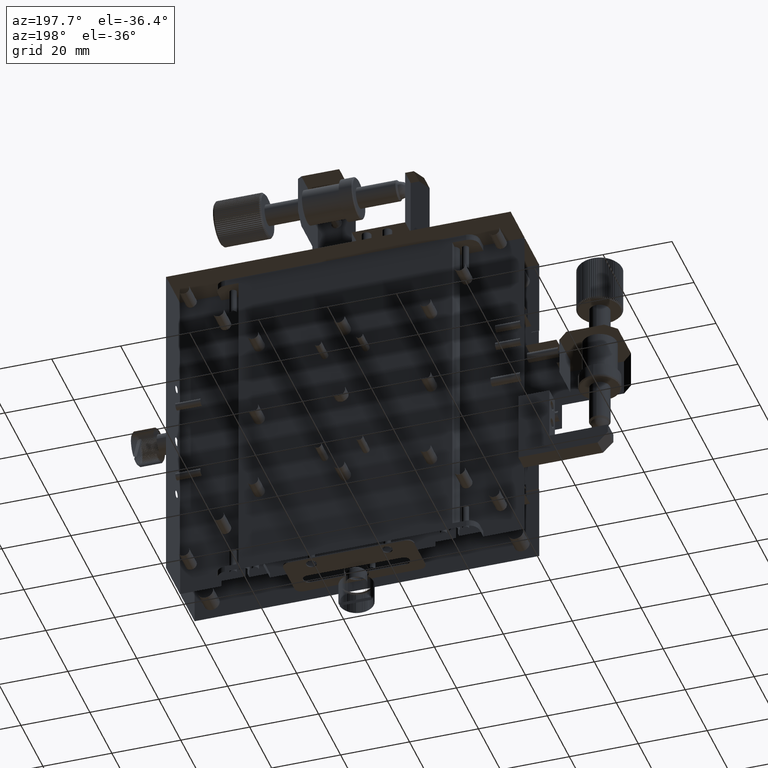
[diagram: clean part render]
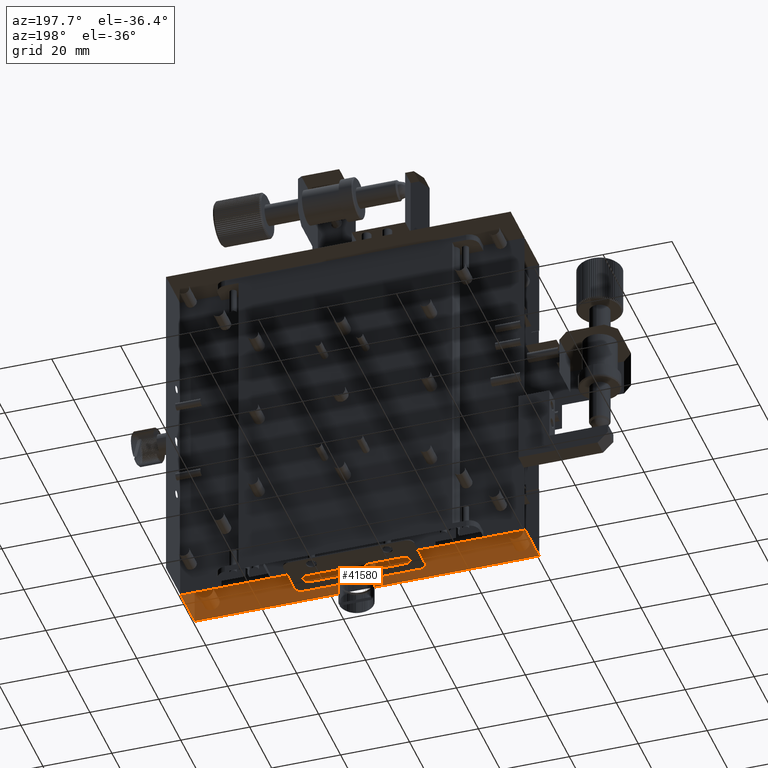
[diagram: same view with one face highlighted and labeled with its STEP entity id]
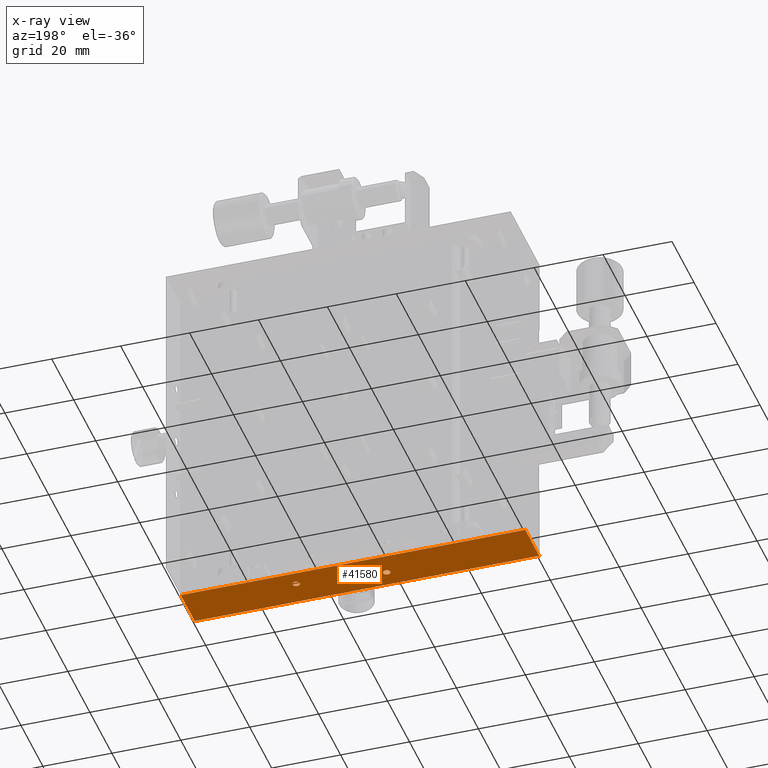
[diagram: x-ray of the same camera — body ghosted, the highlighted face saturated]
A machine part, auxiliary view. The second image highlights one B-rep face of the part: STEP entity #41580.
The next image is the same camera in x-ray: the body ghosted, the highlighted face saturated — about 0% of this face is hidden behind the body in this view.
In plain terms, the highlighted planar face has unit normal (0, 0, 1).
Its self-contained STEP definition (entity closure, byte-faithful):
#273 = CARTESIAN_POINT ( 'NONE',  ( 12.84095269232332548, -0.2130851162013636668, -50.00000000000000000 ) ) ;
#290 = CARTESIAN_POINT ( 'NONE',  ( -3.177293020292842662, 1.632351828029583896, -50.00000000000001421 ) ) ;
#312 = CARTESIAN_POINT ( 'NONE',  ( -10.94473614002813910, -1.628168172441402994, -50.00000000000000711 ) ) ;
#405 = CARTESIAN_POINT ( 'NONE',  ( -5.375742518842010931, -1.137051337634282566, -50.00000000000000711 ) ) ;
#1054 = CARTESIAN_POINT ( 'NONE',  ( 14.54070433707619614, 0.9038000100028286132, -50.00000000000000000 ) ) ;
#1112 = CARTESIAN_POINT ( 'NONE',  ( -5.634324923286773590, 1.961813842482099446, -50.00000000000000000 ) ) ;
#1229 = CARTESIAN_POINT ( 'NONE',  ( -54.38432492328677625, -7.538186157517900554, -50.00000000000000000 ) ) ;
#1319 = CARTESIAN_POINT ( 'NONE',  ( -5.754332240615393168, -3.063118885509927836, -50.00000000000000711 ) ) ;
#1358 = CARTESIAN_POINT ( 'NONE',  ( -5.389946356658849247, 2.723854431807227972, -50.00000000000000000 ) ) ;
#1440 = CARTESIAN_POINT ( 'NONE',  ( 45.61567507671323085, 5.211813842482102999, -50.00000000000000711 ) ) ;
#1546 = CARTESIAN_POINT ( 'NONE',  ( 13.48568239404216840, 1.486746570474134055, -49.99999999999998579 ) ) ;
#1643 = EDGE_CURVE ( 'NONE', #40085, #46004, #19917, .T. ) ;
#1803 = CARTESIAN_POINT ( 'NONE',  ( 12.94077611802963368, 1.236536226871891797, -50.00000000000000000 ) ) ;
#2062 = CARTESIAN_POINT ( 'NONE',  ( -12.20052241587768016, -3.013362403220931185, -50.00000000000000000 ) ) ;
#2296 = CARTESIAN_POINT ( 'NONE',  ( -12.23117127831639905, -3.002854603471997841, -49.99999999999999289 ) ) ;
#2376 = EDGE_CURVE ( 'NONE', #29449, #2847, #41258, .T. ) ;
#2404 = EDGE_CURVE ( 'NONE', #37327, #30047, #8448, .T. ) ;
#2529 = CARTESIAN_POINT ( 'NONE',  ( 14.58032775579045115, 0.1149276024461160783, -49.99999999999999289 ) ) ;
#2537 = CARTESIAN_POINT ( 'NONE',  ( -10.86832079721315480, -2.199240793541805683, -50.00000000000001421 ) ) ;
#2582 = CARTESIAN_POINT ( 'NONE',  ( -12.90032904936040126, -1.877131521494000754, -50.00000000000000711 ) ) ;
#2655 = CARTESIAN_POINT ( 'NONE',  ( 14.64067507671322410, 0.4618138424821085497, -50.00000000000000000 ) ) ;
#2788 = CARTESIAN_POINT ( 'NONE',  ( -10.85932492328677945, -2.038186157517903219, -50.00000000000000000 ) ) ;
#2827 = CARTESIAN_POINT ( 'NONE',  ( -3.764036371302881712, 3.060715821947672222, -49.99999999999997868 ) ) ;
#2847 = VERTEX_POINT ( 'NONE', #10139 ) ;
#2911 = FACE_BOUND ( 'NONE', #44550, .T. ) ;
#2923 = ORIENTED_EDGE ( 'NONE', *, *, #1643, .F. ) ;
#3042 = ORIENTED_EDGE ( 'NONE', *, *, #40728, .T. ) ;
#3046 = EDGE_LOOP ( 'NONE', ( #10851, #20100 ) ) ;
#3153 = CARTESIAN_POINT ( 'NONE',  ( -6.014317605958654944, -1.013253429525874605, -50.00000000000000000 ) ) ;
#3519 = CARTESIAN_POINT ( 'NONE',  ( -5.146365512610534765, 0.9561924091079644361, -50.00000000000000000 ) ) ;
#3574 = B_SPLINE_CURVE_WITH_KNOTS ( 'NONE', 3,
 ( #6618, #20869, #47632, #13500, #13975, #21585, #34068, #41224, #10781, #15172, #7797, #48115, #14471, #22543, #37289, #36803, #3153, #37527, #6852, #7087, #44441, #10543, #44666, #405, #3873, #11255, #3640, #40978, #18866, #26451, #25745, #29896, #21818, #15418 ),
 .UNSPECIFIED., .F., .F.,
 ( 4, 1, 1, 2, 2, 2, 1, 1, 2, 2, 2, 1, 1, 2, 2, 2, 1, 1, 2, 2, 4 ),
 ( 0.000000000000000000, 0.06249999999999768241, 0.09374999999999671096, 0.1093749999999963501, 0.1249999999999959754, 0.2499999999999927836, 0.3124999999999914513, 0.3437499999999907296, 0.3593749999999903966, 0.3749999999999900080, 0.4999999999999930056, 0.5624999999999944489, 0.5937499999999956701, 0.6093749999999957812, 0.6249999999999960032, 0.7499999999999970024, 0.8124999999999976685, 0.8437499999999976685, 0.8593749999999978906, 0.8749999999999981126, 1.000000000000000000 ),
 .UNSPECIFIED. ) ;
#3640 = CARTESIAN_POINT ( 'NONE',  ( -5.043618018907244149, -1.444137239536454453, -50.00000000000000711 ) ) ;
#3751 = CARTESIAN_POINT ( 'NONE',  ( -4.580618418744075271, 0.7227255312773028795, -50.00000000000000000 ) ) ;
#3873 = CARTESIAN_POINT ( 'NONE',  ( -5.259416339918252525, -1.213630722735574485, -49.99999999999999289 ) ) ;
#4018 = EDGE_CURVE ( 'NONE', #24081, #36991, #3574, .T. ) ;
#4025 = CARTESIAN_POINT ( 'NONE',  ( -5.442338755766061631, -2.963215417880974201, -49.99999999999999289 ) ) ;
#4217 = CARTESIAN_POINT ( 'NONE',  ( 12.59067507671322339, 0.3312942391219242944, -49.99999999999997868 ) ) ;
#4458 = CARTESIAN_POINT ( 'NONE',  ( 12.71360039825841604, -0.02737187337322950428, -50.00000000000001421 ) ) ;
#4479 = CARTESIAN_POINT ( 'NONE',  ( -3.207919217095037467, 1.538772645980094778, -50.00000000000001421 ) ) ;
#5295 = CARTESIAN_POINT ( 'NONE',  ( -4.884331381673783667, 3.107663911658688161, -50.00000000000000711 ) ) ;
#5484 = CARTESIAN_POINT ( 'NONE',  ( 13.02162615873101004, 1.302520746861170142, -50.00000000000000000 ) ) ;
#5788 = CARTESIAN_POINT ( 'NONE',  ( -12.55922388197015316, -1.263463773128125744, -50.00000000000000711 ) ) ;
#5996 = CARTESIAN_POINT ( 'NONE',  ( -11.47430693821022629, -2.977774940776541701, -50.00000000000000711 ) ) ;
#6270 = CARTESIAN_POINT ( 'NONE',  ( -4.862873794260048399, 3.116743949905159905, -49.99999999999999289 ) ) ;
#6469 = CARTESIAN_POINT ( 'NONE',  ( -12.24521133469465894, -2.997706439695094094, -50.00000000000001421 ) ) ;
#6513 = CARTESIAN_POINT ( 'NONE',  ( -11.52343851187890245, -1.078665875340697911, -50.00000000000000711 ) ) ;
#6618 = CARTESIAN_POINT ( 'NONE',  ( -6.909324923286773945, -2.038186157517900554, -50.00000000000000000 ) ) ;
#6707 = CARTESIAN_POINT ( 'NONE',  ( 13.55067873537733902, -0.5632197935218759000, -49.99999999999999289 ) ) ;
#6715 = CARTESIAN_POINT ( 'NONE',  ( -12.82391370654543117, -2.448204142594360810, -49.99999999999999289 ) ) ;
#6750 = CARTESIAN_POINT ( 'NONE',  ( -3.284205601139680741, 2.558338459673138665, -50.00000000000000000 ) ) ;
#6839 = DIRECTION ( 'NONE',  ( 1.000000000000000000, 0.000000000000000000, -0.000000000000000000 ) ) ;
#6852 = CARTESIAN_POINT ( 'NONE',  ( -5.723419191286265750, -1.022123168437302887, -50.00000000000000000 ) ) ;
#7087 = CARTESIAN_POINT ( 'NONE',  ( -5.614298864521447996, -1.048375849807643645, -50.00000000000000000 ) ) ;
#7186 = CARTESIAN_POINT ( 'NONE',  ( 14.60544123716825027, 0.1916761056988730283, -50.00000000000000000 ) ) ;
#7441 = CARTESIAN_POINT ( 'NONE',  ( -3.214172872350916421, 1.521716726158736321, -50.00000000000001421 ) ) ;
#7797 = CARTESIAN_POINT ( 'NONE',  ( -6.478373841268635580, -1.197479253138780564, -50.00000000000000000 ) ) ;
#7912 = CARTESIAN_POINT ( 'NONE',  ( -3.285422943821324715, 1.341525290497944667, -50.00000000000000711 ) ) ;
#8172 = CARTESIAN_POINT ( 'NONE',  ( -3.659932795274121631, 0.9365238522541030619, -50.00000000000000000 ) ) ;
#8211 = CARTESIAN_POINT ( 'NONE',  ( -4.919672244209552403, -2.385072397553893886, -50.00000000000002132 ) ) ;
#8363 = EDGE_CURVE ( 'NONE', #2847, #29449, #38936, .T. ) ;
#8444 = CARTESIAN_POINT ( 'NONE',  ( 12.59967095063960763, 0.6228684785065923268, -50.00000000000001421 ) ) ;
#8448 = B_SPLINE_CURVE_WITH_KNOTS ( 'NONE', 3,
 ( #39923, #43124, #2582, #17581, #17832, #29092, #28376, #32556, #39436, #5788, #43377, #9720, #21727, #39681, #14119, #21020, #44091, #28626, #47535, #10197, #25156, #40154, #6513, #10445, #40404, #26591, #37658, #22448, #33275, #312, #40889, #40652, #37435, #22206 ),
 .UNSPECIFIED., .F., .F.,
 ( 4, 1, 1, 2, 2, 2, 1, 1, 2, 2, 2, 1, 1, 2, 2, 2, 1, 1, 2, 2, 4 ),
 ( 0.000000000000000000, 0.06249999999999841793, 0.09374999999999789058, 0.1093749999999973910, 0.1249999999999968914, 0.2499999999999901190, 0.3124999999999867883, 0.3437499999999856226, 0.3593749999999850675, 0.3749999999999845124, 0.4999999999999832356, 0.5624999999999817923, 0.5937499999999810152, 0.6093749999999813483, 0.6249999999999817923, 0.7499999999999897859, 0.8124999999999933387, 0.8437499999999951150, 0.8593749999999958922, 0.8749999999999966693, 1.000000000000000000 ),
 .UNSPECIFIED. ) ;
#8559 = ORIENTED_EDGE ( 'NONE', *, *, #42972, .T. ) ;
#8735 = CARTESIAN_POINT ( 'NONE',  ( -5.554476974222562369, 2.401910958805606011, -49.99999999999999289 ) ) ;
#9185 = CARTESIAN_POINT ( 'NONE',  ( -6.909324923286773945, -2.038186157517900554, -50.00000000000000000 ) ) ;
#9219 = EDGE_LOOP ( 'NONE', ( #15612, #8559 ) ) ;
#9342 = ORIENTED_EDGE ( 'NONE', *, *, #33470, .T. ) ;
#9720 = CARTESIAN_POINT ( 'NONE',  ( -12.37351063914199045, -1.136111479063252716, -49.99999999999999289 ) ) ;
#9923 = CARTESIAN_POINT ( 'NONE',  ( -12.39290732773199721, -2.939320977401293167, -49.99999999999999289 ) ) ;
#9965 = CARTESIAN_POINT ( 'NONE',  ( -3.439520003224010303, 2.784828340520074441, -50.00000000000000000 ) ) ;
#10139 = CARTESIAN_POINT ( 'NONE',  ( -3.134324923286776698, 1.961813842482099446, -50.00000000000000000 ) ) ;
#10159 = CARTESIAN_POINT ( 'NONE',  ( -10.85932492328678123, -2.103267586867210159, -50.00000000000000711 ) ) ;
#10197 = CARTESIAN_POINT ( 'NONE',  ( -11.61429886452119753, -1.048375849807644977, -50.00000000000000711 ) ) ;
#10203 = VECTOR ( 'NONE', #45870, 1000.000000000000000 ) ;
#10393 = CARTESIAN_POINT ( 'NONE',  ( 14.00807730342036983, -0.4852303709441396218, -50.00000000000001421 ) ) ;
#10401 = CARTESIAN_POINT ( 'NONE',  ( -11.75433224061479009, -3.063118885509930500, -50.00000000000000000 ) ) ;
#10445 = CARTESIAN_POINT ( 'NONE',  ( -11.37574251884154819, -1.137051337634633175, -50.00000000000000711 ) ) ;
#10543 = CARTESIAN_POINT ( 'NONE',  ( -5.537478568257180100, -1.073517711563806598, -50.00000000000000000 ) ) ;
#10781 = CARTESIAN_POINT ( 'NONE',  ( -6.708880358068633143, -1.413277574148905646, -50.00000000000002132 ) ) ;
#10851 = ORIENTED_EDGE ( 'NONE', *, *, #8363, .T. ) ;
#11127 = CARTESIAN_POINT ( 'NONE',  ( -5.634324923286773590, 1.802682666222938934, -50.00000000000000000 ) ) ;
#11244 = LINE ( 'NONE', #25734, #33021 ) ;
#11255 = CARTESIAN_POINT ( 'NONE',  ( -5.109602538896722557, -1.363287198834748359, -50.00000000000000000 ) ) ;
#11374 = CARTESIAN_POINT ( 'NONE',  ( -5.539246580975482281, 1.483243653649459093, -50.00000000000000711 ) ) ;
#11382 = B_SPLINE_CURVE_WITH_KNOTS ( 'NONE', 3,
 ( #44294, #21198, #40845, #7186, #25104, #2529, #32749, #47733, #35940, #21435, #17535, #32511, #18020, #44042, #10393, #21679, #40357, #6707, #37857, #30714, #45724, #22399, #15025, #18961, #23118, #273, #30004, #4458, #33460, #37155, #14797, #11826, #4217, #38101 ),
 .UNSPECIFIED., .F., .F.,
 ( 4, 1, 1, 2, 2, 2, 1, 1, 2, 2, 2, 1, 1, 2, 2, 2, 1, 1, 2, 2, 4 ),
 ( 0.000000000000000000, 0.06249999999999718281, 0.09374999999999561462, 0.1093749999999945877, 0.1249999999999935607, 0.2499999999999860112, 0.3124999999999822364, 0.3437499999999803491, 0.3593749999999794054, 0.3749999999999785172, 0.4999999999999755751, 0.5624999999999749090, 0.5937499999999745759, 0.6093749999999752420, 0.6249999999999757971, 0.7499999999999823475, 0.8124999999999856781, 0.8437499999999876765, 0.8593749999999887867, 0.8749999999999898970, 1.000000000000000000 ),
 .UNSPECIFIED. ) ;
#11656 = CARTESIAN_POINT ( 'NONE',  ( -5.627869041235851633, -3.039129527408815701, -50.00000000000000711 ) ) ;
#11826 = CARTESIAN_POINT ( 'NONE',  ( 12.61466407385023025, 0.2055285466882837142, -49.99999999999999289 ) ) ;
#12133 = CARTESIAN_POINT ( 'NONE',  ( 13.12648936085772888, 1.363888520936765714, -50.00000000000000711 ) ) ;
#12402 = CARTESIAN_POINT ( 'NONE',  ( -5.634324923286773590, 1.961813842482099446, -50.00000000000000000 ) ) ;
#12427 = CARTESIAN_POINT ( 'NONE',  ( -5.591356826280708070, 2.291275856934412936, -49.99999999999999289 ) ) ;
#12616 = CARTESIAN_POINT ( 'NONE',  ( 12.65615479453607861, 0.8227002538901032613, -50.00000000000000000 ) ) ;
#12625 = CARTESIAN_POINT ( 'NONE',  ( -6.885335926149772412, -2.294471453312275866, -50.00000000000000711 ) ) ;
#12670 = CARTESIAN_POINT ( 'NONE',  ( -12.90932492328677661, -2.038186157517903219, -50.00000000000000000 ) ) ;
#12923 = CARTESIAN_POINT ( 'NONE',  ( -5.560730629478515041, 2.384855038984032838, -50.00000000000000000 ) ) ;
#13116 = CARTESIAN_POINT ( 'NONE',  ( -6.809354183649883652, -2.480172325038532577, -50.00000000000000000 ) ) ;
#13500 = CARTESIAN_POINT ( 'NONE',  ( -6.874091083741800112, -1.768048420735136794, -49.99999999999999289 ) ) ;
#13608 = CARTESIAN_POINT ( 'NONE',  ( -6.509233506655769830, -2.862741592299756999, -49.99999999999999289 ) ) ;
#13653 = CARTESIAN_POINT ( 'NONE',  ( -3.998685924800191582, 3.151046949282240828, -49.99999999999998579 ) ) ;
#13668 = AXIS2_PLACEMENT_3D ( 'NONE', #26441, #37279, #6839 ) ;
#13975 = CARTESIAN_POINT ( 'NONE',  ( -6.859472788611439498, -1.721916871915835978, -49.99999999999999289 ) ) ;
#14081 = CARTESIAN_POINT ( 'NONE',  ( -12.72503182766602770, -2.632235075499435251, -50.00000000000000711 ) ) ;
#14119 = CARTESIAN_POINT ( 'NONE',  ( -12.27672714999392056, -1.091141944091653437, -50.00000000000000000 ) ) ;
#14326 = CARTESIAN_POINT ( 'NONE',  ( -11.20942596460337626, -2.812908541907762849, -50.00000000000000711 ) ) ;
#14471 = CARTESIAN_POINT ( 'NONE',  ( -6.326311090807408277, -1.113156897154794489, -50.00000000000000000 ) ) ;
#14640 = CARTESIAN_POINT ( 'NONE',  ( -54.38432492328678336, 5.211813842482102999, -50.00000000000000711 ) ) ;
#14797 = CARTESIAN_POINT ( 'NONE',  ( 12.66863931740848770, 0.06939029249280215250, -50.00000000000000000 ) ) ;
#14813 = CARTESIAN_POINT ( 'NONE',  ( -3.884318464900141876, 0.8159637733052677033, -50.00000000000000711 ) ) ;
#15025 = CARTESIAN_POINT ( 'NONE',  ( 13.25478866530520250, -0.4977064396950146574, -50.00000000000000000 ) ) ;
#15172 = CARTESIAN_POINT ( 'NONE',  ( -6.559223881970164705, -1.263463773128083778, -50.00000000000000711 ) ) ;
#15203 = ORIENTED_EDGE ( 'NONE', *, *, #16347, .T. ) ;
#15298 = CARTESIAN_POINT ( 'NONE',  ( -3.845345256260527034, 0.8337112173569792839, -50.00000000000001421 ) ) ;
#15409 = DIRECTION ( 'NONE',  ( -0.000000000000000000, -0.000000000000000000, -1.000000000000000000 ) ) ;
#15418 = CARTESIAN_POINT ( 'NONE',  ( -4.859324923286777675, -2.038186157517900554, -50.00000000000000000 ) ) ;
#15534 = CARTESIAN_POINT ( 'NONE',  ( -3.787800306095780556, 0.8616945203350513394, -50.00000000000000711 ) ) ;
#15612 = ORIENTED_EDGE ( 'NONE', *, *, #39983, .T. ) ;
#15804 = CARTESIAN_POINT ( 'NONE',  ( 12.79111964193178608, 1.086722425851171847, -50.00000000000001421 ) ) ;
#16051 = CARTESIAN_POINT ( 'NONE',  ( 12.64052721138856050, 0.7780831280845241782, -50.00000000000000711 ) ) ;
#16105 = CARTESIAN_POINT ( 'NONE',  ( -5.623354345327778780, 2.158256268638115039, -50.00000000000000000 ) ) ;
#16308 = CARTESIAN_POINT ( 'NONE',  ( -6.154350982051780328, -3.027996465228157241, -50.00000000000000711 ) ) ;
#16347 = EDGE_CURVE ( 'NONE', #30047, #37327, #41723, .T. ) ;
#16545 = CARTESIAN_POINT ( 'NONE',  ( 13.77658080871301571, 1.477876831562704663, -50.00000000000000711 ) ) ;
#16799 = CARTESIAN_POINT ( 'NONE',  ( 13.88570113547801554, 1.451624150192365681, -50.00000000000000000 ) ) ;
#16810 = CARTESIAN_POINT ( 'NONE',  ( -6.786399601741479160, -2.527371873373127187, -50.00000000000001421 ) ) ;
#17050 = CARTESIAN_POINT ( 'NONE',  ( -6.659047307676591920, -2.713085116201286784, -49.99999999999998579 ) ) ;
#17293 = CARTESIAN_POINT ( 'NONE',  ( -12.80935418364994405, -2.480172325038378034, -50.00000000000000000 ) ) ;
#17336 = CARTESIAN_POINT ( 'NONE',  ( -3.229403265598069783, 2.440384031314726254, -50.00000000000000000 ) ) ;
#17424 = FACE_BOUND ( 'NONE', #22894, .T. ) ;
#17535 = CARTESIAN_POINT ( 'NONE',  ( 14.20972399469538949, -0.3788930618968068820, -49.99999999999999289 ) ) ;
#17581 = CARTESIAN_POINT ( 'NONE',  ( -12.87409108374180455, -1.768048420735028881, -50.00000000000000000 ) ) ;
#17791 = CARTESIAN_POINT ( 'NONE',  ( -10.90917705796210946, -2.354455443120038183, -50.00000000000000000 ) ) ;
#17832 = CARTESIAN_POINT ( 'NONE',  ( -12.85947278861144305, -1.721916871915768699, -50.00000000000000711 ) ) ;
#18020 = CARTESIAN_POINT ( 'NONE',  ( 14.05766124423400854, -0.4632154178808975398, -50.00000000000000711 ) ) ;
#18029 = CARTESIAN_POINT ( 'NONE',  ( -11.44233875576612647, -2.963215417881045255, -50.00000000000000711 ) ) ;
#18066 = CARTESIAN_POINT ( 'NONE',  ( -3.359034933058717698, 2.686205970494814466, -50.00000000000000711 ) ) ;
#18136 = CIRCLE ( 'NONE', #19657, 1.024999999999998135 ) ;
#18518 = CARTESIAN_POINT ( 'NONE',  ( -5.329129843349672768, 1.138799344444393125, -50.00000000000001421 ) ) ;
#18866 = CARTESIAN_POINT ( 'NONE',  ( -4.959295662923471681, -1.596199989997467927, -50.00000000000000000 ) ) ;
#18961 = CARTESIAN_POINT ( 'NONE',  ( 13.10709267226910946, -0.4393209774018122515, -50.00000000000000711 ) ) ;
#19266 = CARTESIAN_POINT ( 'NONE',  ( -4.859324923286777675, -2.038186157517900554, -50.00000000000000000 ) ) ;
#19463 = CARTESIAN_POINT ( 'NONE',  ( -4.824422039610078095, 0.7916617915461973132, -50.00000000000000000 ) ) ;
#19657 = AXIS2_PLACEMENT_3D ( 'NONE', #38976, #15409, #34308 ) ;
#19741 = CARTESIAN_POINT ( 'NONE',  ( 13.17368890919242297, 1.386843102845185527, -50.00000000000001421 ) ) ;
#19917 = LINE ( 'NONE', #1229, #45049 ) ;
#20039 = CARTESIAN_POINT ( 'NONE',  ( -5.573529637097344391, 2.347524646841167240, -50.00000000000000711 ) ) ;
#20100 = ORIENTED_EDGE ( 'NONE', *, *, #2376, .T. ) ;
#20229 = CARTESIAN_POINT ( 'NONE',  ( 14.39039746110288576, 1.136712801165600473, -50.00000000000000711 ) ) ;
#20310 = LINE ( 'NONE', #39219, #10203 ) ;
#20467 = CARTESIAN_POINT ( 'NONE',  ( 12.71454025682950650, 0.9703962469264257873, -50.00000000000000711 ) ) ;
#20476 = CARTESIAN_POINT ( 'NONE',  ( -6.392907327731190747, -2.939320977401870039, -49.99999999999999289 ) ) ;
#20565 = EDGE_CURVE ( 'NONE', #46004, #33604, #20310, .T. ) ;
#20680 = ORIENTED_EDGE ( 'NONE', *, *, #2404, .T. ) ;
#20736 = CARTESIAN_POINT ( 'NONE',  ( -11.05976948850495312, -2.663094740886817746, -49.99999999999999289 ) ) ;
#20778 = CARTESIAN_POINT ( 'NONE',  ( -3.622284333962756619, 2.967435275855697885, -49.99999999999999289 ) ) ;
#20869 = CARTESIAN_POINT ( 'NONE',  ( -6.909324923286776610, -1.973104728168677990, -50.00000000000002132 ) ) ;
#21020 = CARTESIAN_POINT ( 'NONE',  ( -12.14078080533792559, -1.037242787626986962, -50.00000000000000000 ) ) ;
#21098 = FACE_BOUND ( 'NONE', #9219, .T. ) ;
#21198 = CARTESIAN_POINT ( 'NONE',  ( 14.64067507671322588, 0.3967324131325248859, -50.00000000000001421 ) ) ;
#21435 = CARTESIAN_POINT ( 'NONE',  ( 14.29057403539679250, -0.3129085419075918750, -50.00000000000000000 ) ) ;
#21585 = CARTESIAN_POINT ( 'NONE',  ( -6.848977602364002770, -1.691299917482077309, -50.00000000000002132 ) ) ;
#21679 = CARTESIAN_POINT ( 'NONE',  ( 13.87213095876436775, -0.5391295274088060419, -50.00000000000000711 ) ) ;
#21688 = CARTESIAN_POINT ( 'NONE',  ( -12.90932492328677661, -2.038186157517903219, -50.00000000000000000 ) ) ;
#21727 = CARTESIAN_POINT ( 'NONE',  ( -12.32631109080740295, -1.113156897154830238, -50.00000000000000711 ) ) ;
#21818 = CARTESIAN_POINT ( 'NONE',  ( -4.859324923286781228, -1.907666554157829486, -50.00000000000002132 ) ) ;
#22177 = CARTESIAN_POINT ( 'NONE',  ( -4.225720698043050838, 0.7118811443835790786, -50.00000000000000000 ) ) ;
#22206 = CARTESIAN_POINT ( 'NONE',  ( -10.85932492328677945, -2.038186157517903219, -50.00000000000000000 ) ) ;
#22299 = DIRECTION ( 'NONE',  ( -1.000000000000000000, -0.000000000000000000, 0.000000000000000000 ) ) ;
#22399 = CARTESIAN_POINT ( 'NONE',  ( 13.26882872168365068, -0.5028546034719846292, -50.00000000000000711 ) ) ;
#22416 = CARTESIAN_POINT ( 'NONE',  ( -4.071650408502188512, 0.7411363149145107077, -50.00000000000000000 ) ) ;
#22448 = CARTESIAN_POINT ( 'NONE',  ( -10.98225024483202716, -1.549000441662798933, -50.00000000000000000 ) ) ;
#22543 = CARTESIAN_POINT ( 'NONE',  ( -6.294342908363319999, -1.098597374259284054, -50.00000000000000711 ) ) ;
#22692 = CARTESIAN_POINT ( 'NONE',  ( -5.059769488505109436, -2.663094740886970957, -50.00000000000000711 ) ) ;
#22886 = CARTESIAN_POINT ( 'NONE',  ( -4.463627035908639407, 0.7117801915313607397, -50.00000000000001421 ) ) ;
#22894 = EDGE_LOOP ( 'NONE', ( #15203, #20680 ) ) ;
#22970 = ORIENTED_EDGE ( 'NONE', *, *, #42641, .T. ) ;
#23043 = CARTESIAN_POINT ( 'NONE',  ( -6.909324923286773945, -2.038186157517900554, -50.00000000000000000 ) ) ;
#23118 = CARTESIAN_POINT ( 'NONE',  ( 12.99076649334440070, -0.3627415922995774200, -50.00000000000000711 ) ) ;
#23138 = CARTESIAN_POINT ( 'NONE',  ( -3.905776052313465918, 0.8068837350590079005, -50.00000000000001421 ) ) ;
#23171 = CARTESIAN_POINT ( 'NONE',  ( 13.96252143174263338, 1.426482288436202062, -50.00000000000000000 ) ) ;
#23181 = CARTESIAN_POINT ( 'NONE',  ( -4.983190103403123850, -2.546768561962519772, -50.00000000000000711 ) ) ;
#23405 = CARTESIAN_POINT ( 'NONE',  ( 14.24058366008254595, 1.286369277263754052, -49.99999999999998579 ) ) ;
#23645 = CARTESIAN_POINT ( 'NONE',  ( 14.56271083601796867, 0.8542373924712772792, -50.00000000000000711 ) ) ;
#24081 = VERTEX_POINT ( 'NONE', #23043 ) ;
#24139 = CARTESIAN_POINT ( 'NONE',  ( 12.62590891625819900, 0.7319515792654205377, -50.00000000000000711 ) ) ;
#24149 = CARTESIAN_POINT ( 'NONE',  ( -6.231171278316259610, -3.002854603471994732, -50.00000000000000000 ) ) ;
#24389 = CARTESIAN_POINT ( 'NONE',  ( -5.949321264622468242, -3.063219793521884338, -50.00000000000000711 ) ) ;
#24429 = CARTESIAN_POINT ( 'NONE',  ( -3.134324923286776698, 2.120945018741370980, -50.00000000000000711 ) ) ;
#24639 = CARTESIAN_POINT ( 'NONE',  ( -11.29027600530489117, -2.878893061897097372, -50.00000000000001421 ) ) ;
#24676 = CARTESIAN_POINT ( 'NONE',  ( -3.944227806963379379, 3.131965893417944624, -50.00000000000000000 ) ) ;
#24921 = CARTESIAN_POINT ( 'NONE',  ( -3.163579797844096486, 2.274317814392152304, -50.00000000000000000 ) ) ;
#25104 = CARTESIAN_POINT ( 'NONE',  ( 14.59082294203789232, 0.1455445568797396338, -49.99999999999999289 ) ) ;
#25156 = CARTESIAN_POINT ( 'NONE',  ( -11.56812743069575866, -1.063009911814874808, -50.00000000000000000 ) ) ;
#25367 = CARTESIAN_POINT ( 'NONE',  ( -10.91967224420955418, -2.385072397553765100, -50.00000000000000000 ) ) ;
#25408 = CARTESIAN_POINT ( 'NONE',  ( -4.542929148530759242, 3.211746540580877163, -49.99999999999999289 ) ) ;
#25734 = CARTESIAN_POINT ( 'NONE',  ( 45.61567507671323085, -7.538186157517900554, -50.00000000000000000 ) ) ;
#25745 = CARTESIAN_POINT ( 'NONE',  ( -4.937289163982039319, -1.645762607528581167, -50.00000000000000000 ) ) ;
#25856 = CARTESIAN_POINT ( 'NONE',  ( -3.145295501245771952, 1.765371416325812515, -50.00000000000000711 ) ) ;
#26096 = CARTESIAN_POINT ( 'NONE',  ( -5.605070048729452026, 1.649309870572159387, -49.99999999999999289 ) ) ;
#26441 = CARTESIAN_POINT ( 'NONE',  ( -4.384324923286775366, -7.538186157517900554, -50.00000000000000000 ) ) ;
#26451 = CARTESIAN_POINT ( 'NONE',  ( -4.944736140028049398, -1.628168172441467831, -49.99999999999999289 ) ) ;
#26591 = CARTESIAN_POINT ( 'NONE',  ( -11.10960253889692240, -1.363287198834608693, -50.00000000000000000 ) ) ;
#26610 = CARTESIAN_POINT ( 'NONE',  ( -4.909177057962113011, -2.354455443120269109, -50.00000000000000000 ) ) ;
#26807 = CARTESIAN_POINT ( 'NONE',  ( -3.134324923286776698, 1.961813842482099446, -50.00000000000000000 ) ) ;
#26850 = CARTESIAN_POINT ( 'NONE',  ( -4.868320797213152140, -2.199240793542285299, -49.99999999999998579 ) ) ;
#27096 = CARTESIAN_POINT ( 'NONE',  ( 13.68067141804875320, 1.486847478486092555, -49.99999999999999289 ) ) ;
#27354 = CARTESIAN_POINT ( 'NONE',  ( -5.395139207431424389, -2.940260835972552833, -50.00000000000000000 ) ) ;
#27589 = CARTESIAN_POINT ( 'NONE',  ( 14.51774975516772237, 0.9509995583374736272, -50.00000000000000000 ) ) ;
#28376 = CARTESIAN_POINT ( 'NONE',  ( -12.84384520546390362, -1.677299746109944145, -49.99999999999999289 ) ) ;
#28588 = CARTESIAN_POINT ( 'NONE',  ( -6.831360682591513189, -2.430609707507137784, -50.00000000000000000 ) ) ;
#28590 = CARTESIAN_POINT ( 'NONE',  ( -12.15435098205217379, -3.027996465228160350, -50.00000000000000000 ) ) ;
#28626 = CARTESIAN_POINT ( 'NONE',  ( -11.81932858195064284, -1.013152521513917437, -49.99999999999999289 ) ) ;
#28828 = CARTESIAN_POINT ( 'NONE',  ( -10.98319010340273216, -2.546768561962128086, -50.00000000000000711 ) ) ;
#29053 = CARTESIAN_POINT ( 'NONE',  ( -12.88533592614977330, -2.294471453312278530, -50.00000000000000000 ) ) ;
#29092 = CARTESIAN_POINT ( 'NONE',  ( -12.84897760236400543, -1.691299917482040893, -50.00000000000000711 ) ) ;
#29175 = FACE_OUTER_BOUND ( 'NONE', #41810, .T. ) ;
#29449 = VERTEX_POINT ( 'NONE', #12402 ) ;
#29553 = CARTESIAN_POINT ( 'NONE',  ( -4.807326227637265248, 0.7853923624072015608, -50.00000000000000000 ) ) ;
#29764 = CARTESIAN_POINT ( 'NONE',  ( 45.61567507671323085, -7.538186157517900554, -50.00000000000000000 ) ) ;
#29782 = CARTESIAN_POINT ( 'NONE',  ( -5.512427548412037304, 1.422834175456046957, -50.00000000000001421 ) ) ;
#29896 = CARTESIAN_POINT ( 'NONE',  ( -4.883313920423780985, -1.781900861724189600, -50.00000000000000711 ) ) ;
#30004 = CARTESIAN_POINT ( 'NONE',  ( 12.77496817233395987, -0.1322350754998982136, -50.00000000000000711 ) ) ;
#30021 = CARTESIAN_POINT ( 'NONE',  ( -3.378703489913108982, 1.199773253158009645, -50.00000000000000000 ) ) ;
#30047 = VERTEX_POINT ( 'NONE', #31685 ) ;
#30309 = CARTESIAN_POINT ( 'NONE',  ( -5.474306938210187212, -2.977774940776499513, -50.00000000000000000 ) ) ;
#30714 = CARTESIAN_POINT ( 'NONE',  ( 13.34564901794796654, -0.5279964652281475823, -50.00000000000000711 ) ) ;
#31332 = CARTESIAN_POINT ( 'NONE',  ( -5.207339421325512419, 2.906618762544309398, -50.00000000000000000 ) ) ;
#31528 = CARTESIAN_POINT ( 'NONE',  ( 14.64067507671322410, 0.5923334458433950900, -50.00000000000000000 ) ) ;
#31537 = CARTESIAN_POINT ( 'NONE',  ( -6.200522415877422588, -3.013362403220927188, -50.00000000000000000 ) ) ;
#31580 = CARTESIAN_POINT ( 'NONE',  ( -5.108717051300822654, 2.987103832709186779, -50.00000000000000000 ) ) ;
#31585 = VERTEX_POINT ( 'NONE', #40416 ) ;
#31685 = CARTESIAN_POINT ( 'NONE',  ( -10.85932492328677945, -2.038186157517903219, -50.00000000000000000 ) ) ;
#31775 = CARTESIAN_POINT ( 'NONE',  ( 13.35921919466251850, 1.462757212373023252, -50.00000000000000000 ) ) ;
#32028 = CARTESIAN_POINT ( 'NONE',  ( -6.823913706545392976, -2.448204142594444743, -50.00000000000000000 ) ) ;
#32069 = CARTESIAN_POINT ( 'NONE',  ( -3.256222298161624895, 2.500793509508377976, -50.00000000000000000 ) ) ;
#32271 = CARTESIAN_POINT ( 'NONE',  ( -12.83136068259151408, -2.430609707507142225, -50.00000000000000000 ) ) ;
#32309 = CARTESIAN_POINT ( 'NONE',  ( -4.054974606858327668, 3.168889912348708204, -49.99999999999998579 ) ) ;
#32403 = FACE_BOUND ( 'NONE', #3046, .T. ) ;
#32511 = CARTESIAN_POINT ( 'NONE',  ( 14.10486079256868663, -0.4402608359724380915, -50.00000000000000711 ) ) ;
#32518 = CARTESIAN_POINT ( 'NONE',  ( -12.78639960174157331, -2.527371873372885158, -50.00000000000000000 ) ) ;
#32556 = CARTESIAN_POINT ( 'NONE',  ( -12.78545974317067113, -1.529603753073299321, -50.00000000000001421 ) ) ;
#32749 = CARTESIAN_POINT ( 'NONE',  ( 14.57519535889038131, 0.1009274310741528069, -50.00000000000000000 ) ) ;
#33021 = VECTOR ( 'NONE', #37519, 1000.000000000000000 ) ;
#33026 = CARTESIAN_POINT ( 'NONE',  ( -4.188031427829247200, 3.200902153686670637, -50.00000000000000711 ) ) ;
#33275 = CARTESIAN_POINT ( 'NONE',  ( -10.95929566292363866, -1.596199989997350244, -49.99999999999999289 ) ) ;
#33424 = EDGE_CURVE ( 'NONE', #43543, #40085, #11244, .T. ) ;
#33460 = CARTESIAN_POINT ( 'NONE',  ( 12.69064581635004707, 0.01982767496140502156, -49.99999999999999289 ) ) ;
#33470 = EDGE_CURVE ( 'NONE', #47178, #47178, #18136, .T. ) ;
#33475 = CARTESIAN_POINT ( 'NONE',  ( -5.409614913515058632, 1.237421714469854717, -50.00000000000000000 ) ) ;
#33604 = VERTEX_POINT ( 'NONE', #14640 ) ;
#33936 = CARTESIAN_POINT ( 'NONE',  ( -54.38432492328678336, -7.538186157517900554, -50.00000000000000711 ) ) ;
#34068 = CARTESIAN_POINT ( 'NONE',  ( -6.843845205463878756, -1.677299746109903955, -49.99999999999999289 ) ) ;
#34193 = CARTESIAN_POINT ( 'NONE',  ( -3.195120209476209006, 1.576103038122901756, -50.00000000000001421 ) ) ;
#34238 = CARTESIAN_POINT ( 'NONE',  ( -4.924804641109619574, -2.399072568925856075, -50.00000000000000000 ) ) ;
#34308 = DIRECTION ( 'NONE',  ( -1.000000000000000000, 0.000000000000000000, 0.000000000000000000 ) ) ;
#34467 = CARTESIAN_POINT ( 'NONE',  ( 14.61668607957622434, 0.7180991382770359754, -50.00000000000000711 ) ) ;
#34708 = CARTESIAN_POINT ( 'NONE',  ( 13.93187256930373685, 1.436990088185135406, -49.99999999999999289 ) ) ;
#34955 = CARTESIAN_POINT ( 'NONE',  ( 12.59067507671322872, 0.4618138424821085497, -50.00000000000000000 ) ) ;
#35011 = CARTESIAN_POINT ( 'NONE',  ( -5.483226902752812215, 2.582102394465110695, -49.99999999999999289 ) ) ;
#35201 = CARTESIAN_POINT ( 'NONE',  ( 13.22327285000603503, 1.408858055908358109, -50.00000000000000711 ) ) ;
#35421 = EDGE_LOOP ( 'NONE', ( #9342 ) ) ;
#35459 = CARTESIAN_POINT ( 'NONE',  ( -6.909324923286773945, -2.168705760878636646, -50.00000000000000711 ) ) ;
#35715 = CARTESIAN_POINT ( 'NONE',  ( -12.04523065528738357, -3.054249146598503106, -50.00000000000000711 ) ) ;
#35752 = CARTESIAN_POINT ( 'NONE',  ( -4.696999438071655320, 3.182491370049949975, -50.00000000000000000 ) ) ;
#35940 = CARTESIAN_POINT ( 'NONE',  ( 14.44023051149473424, -0.1630947408871209758, -50.00000000000000000 ) ) ;
#35950 = CARTESIAN_POINT ( 'NONE',  ( -11.62786904123606746, -3.039129527408819698, -49.99999999999999289 ) ) ;
#35995 = CARTESIAN_POINT ( 'NONE',  ( -3.961323618936222868, 3.138235322556933937, -50.00000000000000000 ) ) ;
#36186 = CARTESIAN_POINT ( 'NONE',  ( -12.90932492328677128, -2.168705760878636202, -49.99999999999998579 ) ) ;
#36551 = FACE_BOUND ( 'NONE', #35421, .T. ) ;
#36676 = CARTESIAN_POINT ( 'NONE',  ( -12.65904730767666919, -2.713085116201104263, -49.99999999999999289 ) ) ;
#36714 = CARTESIAN_POINT ( 'NONE',  ( -4.305022810664785204, 3.211847493432707257, -50.00000000000000000 ) ) ;
#36801 = CARTESIAN_POINT ( 'NONE',  ( -4.384324923286775366, 5.211813842482102110, -50.00000000000000000 ) ) ;
#36803 = CARTESIAN_POINT ( 'NONE',  ( -6.140780805337704429, -1.037242787626986074, -50.00000000000000711 ) ) ;
#36991 = VERTEX_POINT ( 'NONE', #40473 ) ;
#37128 = VERTEX_POINT ( 'NONE', #2655 ) ;
#37155 = CARTESIAN_POINT ( 'NONE',  ( 12.67608629345457238, 0.05179585740552484358, -50.00000000000000000 ) ) ;
#37279 = DIRECTION ( 'NONE',  ( 0.000000000000000000, 0.000000000000000000, 1.000000000000000000 ) ) ;
#37289 = CARTESIAN_POINT ( 'NONE',  ( -6.276727149993943655, -1.091141944091651661, -50.00000000000000000 ) ) ;
#37327 = VERTEX_POINT ( 'NONE', #12670 ) ;
#37405 = CARTESIAN_POINT ( 'NONE',  ( -4.713675239715051646, 0.7547377726153190469, -49.99999999999999289 ) ) ;
#37435 = CARTESIAN_POINT ( 'NONE',  ( -10.85932492328678123, -1.907666554157166905, -50.00000000000000000 ) ) ;
#37440 = ORIENTED_EDGE ( 'NONE', *, *, #20565, .F. ) ;
#37519 = DIRECTION ( 'NONE',  ( -0.000000000000000000, -1.000000000000000000, 0.000000000000000000 ) ) ;
#37527 = CARTESIAN_POINT ( 'NONE',  ( -5.819328581950837354, -1.013152521513916549, -50.00000000000000000 ) ) ;
#37658 = CARTESIAN_POINT ( 'NONE',  ( -11.04361801890759409, -1.444137239536207318, -50.00000000000001421 ) ) ;
#37680 = CARTESIAN_POINT ( 'NONE',  ( -5.209425964603293657, -2.812908541907681137, -50.00000000000001421 ) ) ;
#37857 = CARTESIAN_POINT ( 'NONE',  ( 13.45476934471280472, -0.5542491465984891175, -50.00000000000000000 ) ) ;
#37878 = CARTESIAN_POINT ( 'NONE',  ( -4.769963921773249460, 0.7725807356818462646, -50.00000000000000711 ) ) ;
#38101 = CARTESIAN_POINT ( 'NONE',  ( 12.59067507671322872, 0.4618138424821085497, -50.00000000000000000 ) ) ;
#38405 = CARTESIAN_POINT ( 'NONE',  ( -5.290276005304750839, -2.878893061896954819, -50.00000000000000000 ) ) ;
#38883 = CARTESIAN_POINT ( 'NONE',  ( 14.45638198109206485, 1.055862760464150174, -50.00000000000001421 ) ) ;
#38936 = B_SPLINE_CURVE_WITH_KNOTS ( 'NONE', 3,
 ( #26807, #41107, #25856, #290, #34193, #4479, #7441, #7912, #30021, #41808, #8172, #15534, #15298, #14813, #23138, #22416, #22177, #22886, #3751, #37405, #37878, #29553, #19463, #45031, #3519, #18518, #33475, #48465, #29782, #44784, #11374, #26096, #11127, #41340 ),
 .UNSPECIFIED., .F., .F.,
 ( 4, 1, 1, 2, 2, 2, 1, 1, 2, 2, 2, 1, 1, 2, 2, 2, 1, 1, 2, 2, 4 ),
 ( 0.000000000000000000, 0.06249999999999984734, 0.09374999999999979183, 0.1093749999999998335, 0.1249999999999998612, 0.2499999999999999445, 0.3124999999999999445, 0.3437499999999998335, 0.3593749999999996114, 0.3749999999999993894, 0.4999999999999983902, 0.5624999999999978906, 0.5937499999999975575, 0.6093749999999977796, 0.6249999999999978906, 0.7499999999999988898, 0.8124999999999996669, 0.8437500000000000000, 0.8593750000000001110, 0.8750000000000002220, 1.000000000000000000 ),
 .UNSPECIFIED. ) ;
#38941 = CARTESIAN_POINT ( 'NONE',  ( -4.980849540478816451, 3.061933164628466209, -49.99999999999999289 ) ) ;
#38976 = CARTESIAN_POINT ( 'NONE',  ( -8.384324923286778031, 0.4618138424820998900, -50.00000000000000000 ) ) ;
#39136 = CARTESIAN_POINT ( 'NONE',  ( 14.64067507671322410, 0.4618138424821085497, -50.00000000000000000 ) ) ;
#39219 = CARTESIAN_POINT ( 'NONE',  ( -54.38432492328677625, 4.961813842482100334, -50.00000000000000000 ) ) ;
#39251 = B_SPLINE_CURVE_WITH_KNOTS ( 'NONE', 3,
 ( #34955, #46268, #8444, #24139, #16051, #46520, #12616, #20467, #15804, #1803, #5484, #12133, #19741, #42835, #35201, #31775, #1546, #27096, #16545, #16799, #34708, #23171, #42337, #42099, #23405, #20229, #38883, #27589, #1054, #42589, #23645, #34467, #31528, #39136 ),
 .UNSPECIFIED., .F., .F.,
 ( 4, 1, 1, 2, 2, 2, 1, 1, 2, 2, 2, 1, 1, 2, 2, 2, 1, 1, 2, 2, 4 ),
 ( 0.000000000000000000, 0.06250000000000488498, 0.09375000000000716094, 0.1093750000000080769, 0.1250000000000089928, 0.2500000000000157097, 0.3125000000000190958, 0.3437500000000207612, 0.3593750000000215383, 0.3750000000000223155, 0.5000000000000244249, 0.5625000000000246470, 0.5937500000000238698, 0.6093750000000235367, 0.6250000000000232037, 0.7500000000000145439, 0.8125000000000102141, 0.8437500000000076605, 0.8593750000000067724, 0.8750000000000057732, 1.000000000000000000 ),
 .UNSPECIFIED. ) ;
#39393 = CARTESIAN_POINT ( 'NONE',  ( -6.725031827665898909, -2.632235075499760324, -50.00000000000001421 ) ) ;
#39436 = CARTESIAN_POINT ( 'NONE',  ( -12.70888035806866512, -1.413277574148825710, -50.00000000000000711 ) ) ;
#39644 = CARTESIAN_POINT ( 'NONE',  ( -11.39513920743152831, -2.940260835972658082, -49.99999999999999289 ) ) ;
#39681 = CARTESIAN_POINT ( 'NONE',  ( -12.29434290836332089, -1.098597374259304038, -50.00000000000000000 ) ) ;
#39885 = CARTESIAN_POINT ( 'NONE',  ( -10.89455876283175328, -2.308323894300777113, -50.00000000000001421 ) ) ;
#39923 = CARTESIAN_POINT ( 'NONE',  ( -12.90932492328677661, -2.038186157517903219, -50.00000000000000000 ) ) ;
#39983 = EDGE_CURVE ( 'NONE', #37128, #31585, #11382, .T. ) ;
#40085 = VERTEX_POINT ( 'NONE', #29764 ) ;
#40154 = CARTESIAN_POINT ( 'NONE',  ( -11.53747856825709128, -1.073517711563807930, -50.00000000000000711 ) ) ;
#40357 = CARTESIAN_POINT ( 'NONE',  ( 13.74566775938500029, -0.5631188855099173995, -50.00000000000001421 ) ) ;
#40365 = CARTESIAN_POINT ( 'NONE',  ( -12.50923350665562417, -2.862741592300133586, -49.99999999999999289 ) ) ;
#40404 = CARTESIAN_POINT ( 'NONE',  ( -11.25941633991785729, -1.213630722735859813, -50.00000000000000000 ) ) ;
#40416 = CARTESIAN_POINT ( 'NONE',  ( 12.59067507671322872, 0.4618138424821085497, -50.00000000000000000 ) ) ;
#40473 = CARTESIAN_POINT ( 'NONE',  ( -4.859324923286777675, -2.038186157517900554, -50.00000000000000000 ) ) ;
#40652 = CARTESIAN_POINT ( 'NONE',  ( -10.88331392042377921, -1.781900861723526797, -50.00000000000000000 ) ) ;
#40728 = EDGE_CURVE ( 'NONE', #36991, #24081, #41775, .T. ) ;
#40845 = CARTESIAN_POINT ( 'NONE',  ( 14.63167920278685052, 0.3007592064577216950, -50.00000000000000711 ) ) ;
#40889 = CARTESIAN_POINT ( 'NONE',  ( -10.93728916398204021, -1.645762607528665988, -50.00000000000000711 ) ) ;
#40978 = CARTESIAN_POINT ( 'NONE',  ( -4.982250244831766040, -1.549000441662982341, -49.99999999999998579 ) ) ;
#41107 = CARTESIAN_POINT ( 'NONE',  ( -3.134324923286776698, 1.882426626603674658, -50.00000000000000000 ) ) ;
#41212 = PLANE ( 'NONE',  #13668 ) ;
#41224 = CARTESIAN_POINT ( 'NONE',  ( -6.785459743170865643, -1.529603753073606409, -50.00000000000002132 ) ) ;
#41258 = B_SPLINE_CURVE_WITH_KNOTS ( 'NONE', 3,
 ( #1112, #46572, #16105, #12427, #20039, #12923, #8735, #35011, #1358, #31332, #31580, #38941, #46319, #5295, #6270, #35752, #25408, #36714, #33026, #32309, #13653, #35995, #24676, #2827, #20778, #9965, #18066, #6750, #32069, #47779, #17336, #24921, #24429, #43859 ),
 .UNSPECIFIED., .F., .F.,
 ( 4, 1, 1, 2, 2, 2, 1, 1, 2, 2, 2, 1, 1, 2, 2, 2, 1, 1, 2, 2, 4 ),
 ( 0.000000000000000000, 0.06250000000000015266, 0.09375000000000030531, 0.1093750000000004580, 0.1250000000000006384, 0.2500000000000019984, 0.3125000000000024425, 0.3437500000000025535, 0.3593750000000025535, 0.3750000000000025535, 0.5000000000000022204, 0.5625000000000019984, 0.5937500000000019984, 0.6093750000000019984, 0.6250000000000021094, 0.7500000000000025535, 0.8125000000000026645, 0.8437500000000026645, 0.8593750000000024425, 0.8750000000000022204, 1.000000000000000000 ),
 .UNSPECIFIED. ) ;
#41340 = CARTESIAN_POINT ( 'NONE',  ( -5.634324923286773590, 1.961813842482099446, -50.00000000000000000 ) ) ;
#41580 = ADVANCED_FACE ( 'NONE', ( #36551, #2911, #21098, #17424, #32403, #29175 ), #41212, .T. ) ;
#41607 = CARTESIAN_POINT ( 'NONE',  ( -4.859324923286776787, -2.103267586867483274, -50.00000000000000000 ) ) ;
#41723 = B_SPLINE_CURVE_WITH_KNOTS ( 'NONE', 3,
 ( #2788, #10159, #2537, #39885, #17791, #25367, #43334, #28828, #20736, #14326, #24639, #39644, #18029, #5996, #47743, #35950, #10401, #47011, #35715, #28590, #2062, #2296, #6469, #9923, #40365, #36676, #14081, #32518, #17293, #6715, #32271, #29053, #36186, #21688 ),
 .UNSPECIFIED., .F., .F.,
 ( 4, 1, 1, 2, 2, 2, 1, 1, 2, 2, 2, 1, 1, 2, 2, 2, 1, 1, 2, 2, 4 ),
 ( 0.000000000000000000, 0.06250000000000117961, 0.09375000000000140166, 0.1093750000000015266, 0.1250000000000016376, 0.2500000000000003331, 0.3125000000000002220, 0.3437500000000002776, 0.3593750000000003886, 0.3750000000000004996, 0.4999999999999990008, 0.5624999999999974465, 0.5937499999999966693, 0.6093749999999971134, 0.6249999999999974465, 0.7499999999999997780, 0.8125000000000009992, 0.8437500000000015543, 0.8593750000000015543, 0.8750000000000015543, 1.000000000000000000 ),
 .UNSPECIFIED. ) ;
#41775 = B_SPLINE_CURVE_WITH_KNOTS ( 'NONE', 3,
 ( #19266, #41607, #26850, #45076, #26610, #8211, #34238, #23181, #22692, #37680, #38405, #27354, #4025, #30309, #45311, #11656, #1319, #24389, #43579, #16308, #31537, #24149, #46279, #20476, #13608, #17050, #39393, #16810, #13116, #32028, #28588, #12625, #35459, #9185 ),
 .UNSPECIFIED., .F., .F.,
 ( 4, 1, 1, 2, 2, 2, 1, 1, 2, 2, 2, 1, 1, 2, 2, 2, 1, 1, 2, 2, 4 ),
 ( 0.000000000000000000, 0.06249999999999791833, 0.09374999999999716893, 0.1093749999999968775, 0.1249999999999965861, 0.2499999999999927836, 0.3124999999999905631, 0.3437499999999893974, 0.3593749999999891198, 0.3749999999999888978, 0.4999999999999874545, 0.5624999999999866773, 0.5937499999999867883, 0.6093749999999872324, 0.6249999999999876765, 0.7499999999999917843, 0.8124999999999940048, 0.8437499999999950040, 0.8593749999999955591, 0.8749999999999961142, 1.000000000000000000 ),
 .UNSPECIFIED. ) ;
#41808 = CARTESIAN_POINT ( 'NONE',  ( -3.561310425248833678, 1.017008922419369910, -50.00000000000000000 ) ) ;
#41810 = EDGE_LOOP ( 'NONE', ( #42073, #22970, #37440, #2923 ) ) ;
#42073 = ORIENTED_EDGE ( 'NONE', *, *, #33424, .F. ) ;
#42099 = CARTESIAN_POINT ( 'NONE',  ( 14.12425748115760094, 1.362948662366235464, -50.00000000000000000 ) ) ;
#42266 = CARTESIAN_POINT ( 'NONE',  ( -9.409324923286774833, 0.4618138424820998900, -50.00000000000000000 ) ) ;
#42337 = CARTESIAN_POINT ( 'NONE',  ( 13.97656148812121479, 1.421334124659206166, -50.00000000000000000 ) ) ;
#42589 = CARTESIAN_POINT ( 'NONE',  ( 14.55526385997176675, 0.8718318275587016997, -49.99999999999999289 ) ) ;
#42614 = VECTOR ( 'NONE', #22299, 1000.000000000000000 ) ;
#42641 = EDGE_CURVE ( 'NONE', #43543, #33604, #45386, .T. ) ;
#42835 = CARTESIAN_POINT ( 'NONE',  ( 13.20565709163658674, 1.401402625740709951, -50.00000000000000711 ) ) ;
#42972 = EDGE_CURVE ( 'NONE', #31585, #37128, #39251, .T. ) ;
#42998 = ORIENTED_EDGE ( 'NONE', *, *, #4018, .T. ) ;
#43124 = CARTESIAN_POINT ( 'NONE',  ( -12.90932492328677483, -1.973104728168596500, -50.00000000000000711 ) ) ;
#43334 = CARTESIAN_POINT ( 'NONE',  ( -10.92480464110967375, -2.399072568925910698, -50.00000000000002132 ) ) ;
#43377 = CARTESIAN_POINT ( 'NONE',  ( -12.47837384126861160, -1.197479253138853172, -50.00000000000001421 ) ) ;
#43543 = VERTEX_POINT ( 'NONE', #1440 ) ;
#43579 = CARTESIAN_POINT ( 'NONE',  ( -6.045230655286853327, -3.054249146598497777, -50.00000000000001421 ) ) ;
#43859 = CARTESIAN_POINT ( 'NONE',  ( -3.134324923286776698, 1.961813842482099446, -50.00000000000000000 ) ) ;
#44042 = CARTESIAN_POINT ( 'NONE',  ( 14.02569306178985542, -0.4777749407764521616, -50.00000000000000711 ) ) ;
#44091 = CARTESIAN_POINT ( 'NONE',  ( -12.01431760595904663, -1.013253429525875715, -50.00000000000001421 ) ) ;
#44294 = CARTESIAN_POINT ( 'NONE',  ( 14.64067507671322410, 0.4618138424821085497, -50.00000000000000000 ) ) ;
#44441 = CARTESIAN_POINT ( 'NONE',  ( -5.568127430695921198, -1.063009911814873032, -50.00000000000000711 ) ) ;
#44550 = EDGE_LOOP ( 'NONE', ( #3042, #42998 ) ) ;
#44666 = CARTESIAN_POINT ( 'NONE',  ( -5.523438511878839385, -1.078665875340739433, -49.99999999999999289 ) ) ;
#44784 = CARTESIAN_POINT ( 'NONE',  ( -5.530174992463684269, 1.461807384095573870, -50.00000000000002132 ) ) ;
#45031 = CARTESIAN_POINT ( 'NONE',  ( -5.004613475271415979, 0.8629118630169947401, -50.00000000000000000 ) ) ;
#45049 = VECTOR ( 'NONE', #46200, 1000.000000000000000 ) ;
#45076 = CARTESIAN_POINT ( 'NONE',  ( -4.894558762831752396, -2.308323894301135937, -50.00000000000000000 ) ) ;
#45311 = CARTESIAN_POINT ( 'NONE',  ( -5.491922696579607965, -2.985230370944149669, -50.00000000000000711 ) ) ;
#45386 = LINE ( 'NONE', #36801, #42614 ) ;
#45724 = CARTESIAN_POINT ( 'NONE',  ( 13.29947758412241754, -0.5133624032209185284, -50.00000000000000711 ) ) ;
#45870 = DIRECTION ( 'NONE',  ( 0.000000000000000000, 1.000000000000000000, 0.000000000000000000 ) ) ;
#46004 = VERTEX_POINT ( 'NONE', #33936 ) ;
#46200 = DIRECTION ( 'NONE',  ( -1.000000000000000000, -0.000000000000000000, 0.000000000000000000 ) ) ;
#46268 = CARTESIAN_POINT ( 'NONE',  ( 12.59067507671322872, 0.5268952718317475581, -50.00000000000001421 ) ) ;
#46279 = CARTESIAN_POINT ( 'NONE',  ( -6.245211334694758420, -2.997706439695018155, -50.00000000000000000 ) ) ;
#46319 = CARTESIAN_POINT ( 'NONE',  ( -4.923304590313698270, 3.089916467606782735, -50.00000000000000000 ) ) ;
#46520 = CARTESIAN_POINT ( 'NONE',  ( 12.65102239763600167, 0.8087000825181269725, -50.00000000000000711 ) ) ;
#46572 = CARTESIAN_POINT ( 'NONE',  ( -5.634324923286776254, 2.041201058360370801, -50.00000000000001421 ) ) ;
#47011 = CARTESIAN_POINT ( 'NONE',  ( -11.94932126462276933, -3.063219793521890111, -50.00000000000000711 ) ) ;
#47178 = VERTEX_POINT ( 'NONE', #42266 ) ;
#47535 = CARTESIAN_POINT ( 'NONE',  ( -11.72341919128592558, -1.022123168437303331, -50.00000000000000000 ) ) ;
#47632 = CARTESIAN_POINT ( 'NONE',  ( -6.900329049360395040, -1.877131521494144639, -49.99999999999999289 ) ) ;
#47733 = CARTESIAN_POINT ( 'NONE',  ( 14.51680989659687349, -0.04676856196251340247, -50.00000000000000000 ) ) ;
#47743 = CARTESIAN_POINT ( 'NONE',  ( -11.49192269657958043, -2.985230370944153222, -50.00000000000000000 ) ) ;
#47779 = CARTESIAN_POINT ( 'NONE',  ( -3.238474854109927303, 2.461820300868749811, -50.00000000000000711 ) ) ;
#48115 = CARTESIAN_POINT ( 'NONE',  ( -6.373510639142004663, -1.136111479063198315, -50.00000000000002132 ) ) ;
#48465 = CARTESIAN_POINT ( 'NONE',  ( -5.484444245434040965, 1.365289225291410835, -50.00000000000000711 ) ) ;